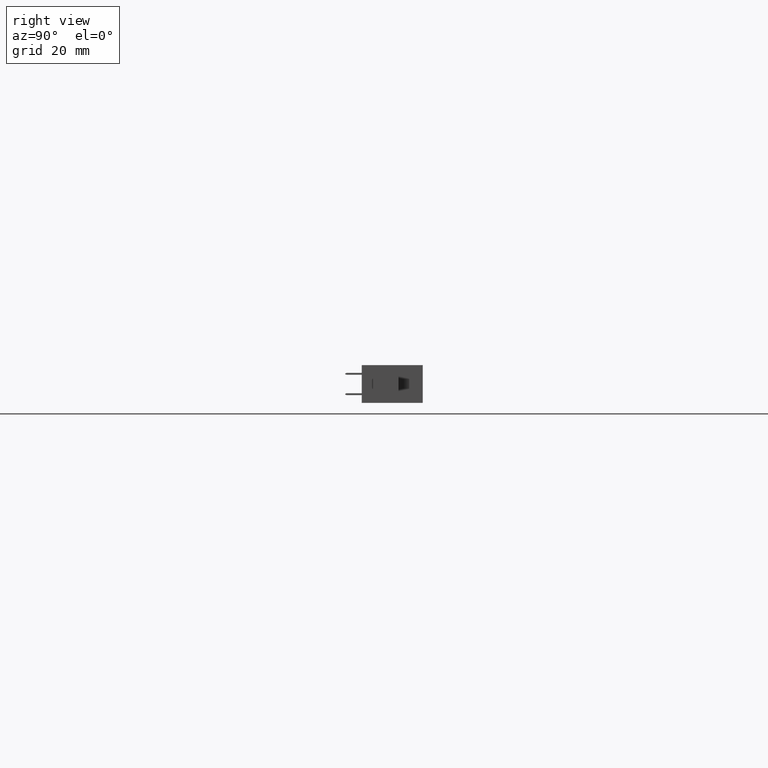
[diagram: clean part render]
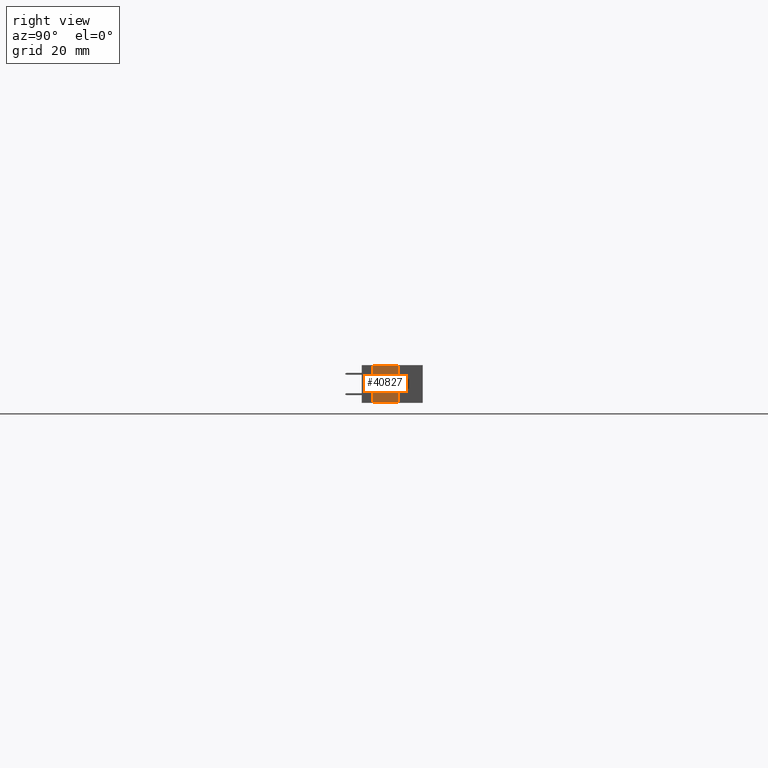
[diagram: same view with one face highlighted and labeled with its STEP entity id]
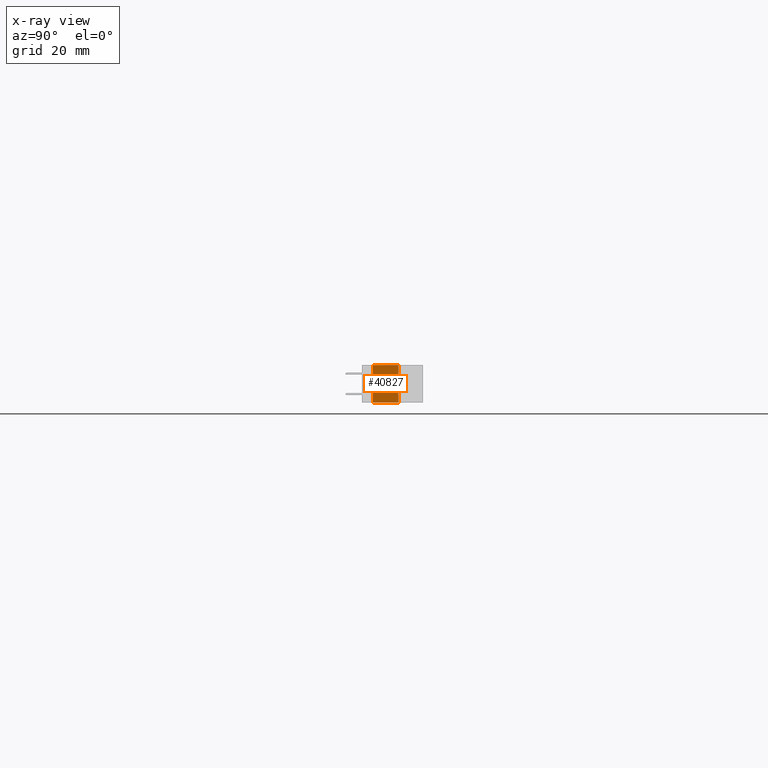
[diagram: x-ray of the same camera — body ghosted, the highlighted face saturated]
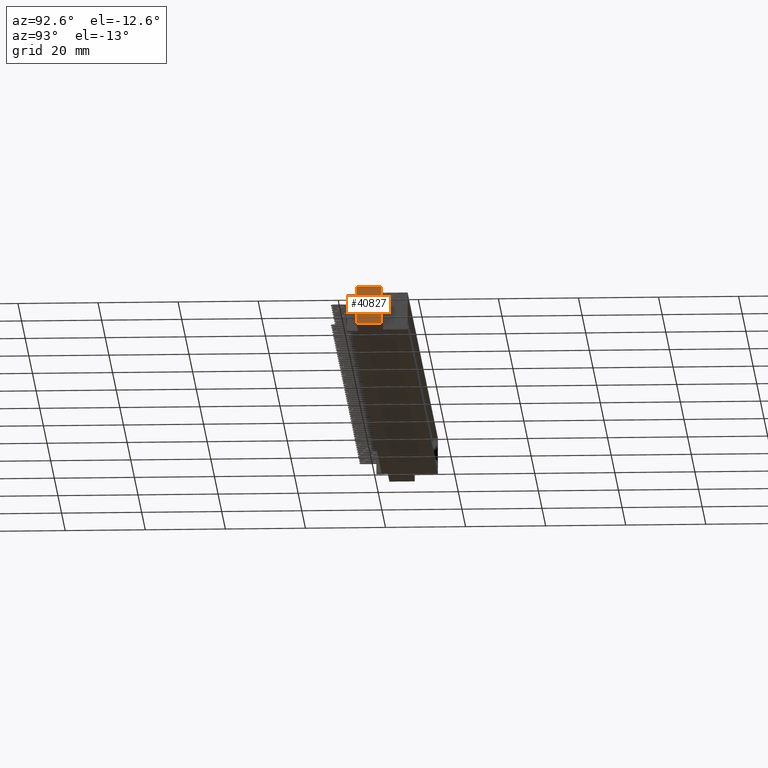
[diagram: same view with one face highlighted and labeled with its STEP entity id]
A machine part, right view. The second image highlights one B-rep face of the part: STEP entity #40827.
The next image is the same camera in x-ray: the body ghosted, the highlighted face saturated — about 0% of this face is hidden behind the body in this view.
A second angle (auxiliary view) of the same face is appended — the face is thin or edge-on in the first view.
In plain terms, the highlighted planar face has unit normal (-1, 0, 0).
Its self-contained STEP definition (entity closure, byte-faithful):
#461 = LINE ( 'NONE', #44029, #18667 ) ;
#925 = DIRECTION ( 'NONE',  ( -0.0000000000000000000, -0.0000000000000000000, 1.000000000000000000 ) ) ;
#1397 = LINE ( 'NONE', #20056, #40390 ) ;
#2057 = CARTESIAN_POINT ( 'NONE',  ( 7.135000000000000675, 0.5999999999999999778, 0.0000000000000000000 ) ) ;
#2368 = EDGE_CURVE ( 'NONE', #18268, #31024, #46321, .T. ) ;
#3100 = PLANE ( 'NONE',  #19657 ) ;
#4468 = VERTEX_POINT ( 'NONE', #39734 ) ;
#6619 = ORIENTED_EDGE ( 'NONE', *, *, #2368, .T. ) ;
#9329 = DIRECTION ( 'NONE',  ( -0.0000000000000000000, -1.000000000000000000, -0.0000000000000000000 ) ) ;
#9902 = EDGE_LOOP ( 'NONE', ( #17437, #45451, #16817, #6619 ) ) ;
#10024 = CARTESIAN_POINT ( 'NONE',  ( 7.135000000000000675, 0.5999999999999999778, 0.0000000000000000000 ) ) ;
#13308 = EDGE_CURVE ( 'NONE', #18268, #4468, #461, .T. ) ;
#14330 = DIRECTION ( 'NONE',  ( 0.0000000000000000000, 0.0000000000000000000, 1.000000000000000000 ) ) ;
#16817 = ORIENTED_EDGE ( 'NONE', *, *, #13308, .F. ) ;
#17437 = ORIENTED_EDGE ( 'NONE', *, *, #32424, .F. ) ;
#17682 = FACE_OUTER_BOUND ( 'NONE', #9902, .T. ) ;
#17919 = DIRECTION ( 'NONE',  ( -1.000000000000000000, 0.0000000000000000000, 0.0000000000000000000 ) ) ;
#18268 = VERTEX_POINT ( 'NONE', #37004 ) ;
#18667 = VECTOR ( 'NONE', #25829, 39.37007874015748143 ) ;
#18807 = VERTEX_POINT ( 'NONE', #25674 ) ;
#19657 = AXIS2_PLACEMENT_3D ( 'NONE', #10024, #17919, #14330 ) ;
#19896 = VECTOR ( 'NONE', #9329, 39.37007874015748143 ) ;
#20056 = CARTESIAN_POINT ( 'NONE',  ( 7.135000000000000675, 0.1100000000000000006, 8.737854911916364890E-16 ) ) ;
#20567 = CARTESIAN_POINT ( 'NONE',  ( 7.135000000000000675, 0.5999999999999999778, -0.3699999999999999956 ) ) ;
#25674 = CARTESIAN_POINT ( 'NONE',  ( 7.135000000000000675, 0.1100000000000000006, -0.3699999999999991074 ) ) ;
#25829 = DIRECTION ( 'NONE',  ( 0.0000000000000000000, 0.0000000000000000000, -1.000000000000000000 ) ) ;
#31009 = DIRECTION ( 'NONE',  ( -0.0000000000000000000, -1.000000000000000000, -0.0000000000000000000 ) ) ;
#31024 = VERTEX_POINT ( 'NONE', #33712 ) ;
#32424 = EDGE_CURVE ( 'NONE', #18807, #31024, #1397, .T. ) ;
#33712 = CARTESIAN_POINT ( 'NONE',  ( 7.135000000000000675, 0.1100000000000000006, 8.737854911916364890E-16 ) ) ;
#35420 = LINE ( 'NONE', #20567, #19896 ) ;
#37004 = CARTESIAN_POINT ( 'NONE',  ( 7.135000000000000675, 0.3599999999999999867, 0.0000000000000000000 ) ) ;
#38824 = VECTOR ( 'NONE', #31009, 39.37007874015748143 ) ;
#39734 = CARTESIAN_POINT ( 'NONE',  ( 7.135000000000000675, 0.3600000000000000422, -0.3699999999999999956 ) ) ;
#40390 = VECTOR ( 'NONE', #925, 39.37007874015748143 ) ;
#40827 = ADVANCED_FACE ( 'NONE', ( #17682 ), #3100, .F. ) ;
#44029 = CARTESIAN_POINT ( 'NONE',  ( 7.135000000000000675, 0.3599999999999999867, 0.0000000000000000000 ) ) ;
#44305 = EDGE_CURVE ( 'NONE', #4468, #18807, #35420, .T. ) ;
#45451 = ORIENTED_EDGE ( 'NONE', *, *, #44305, .F. ) ;
#46321 = LINE ( 'NONE', #2057, #38824 ) ;